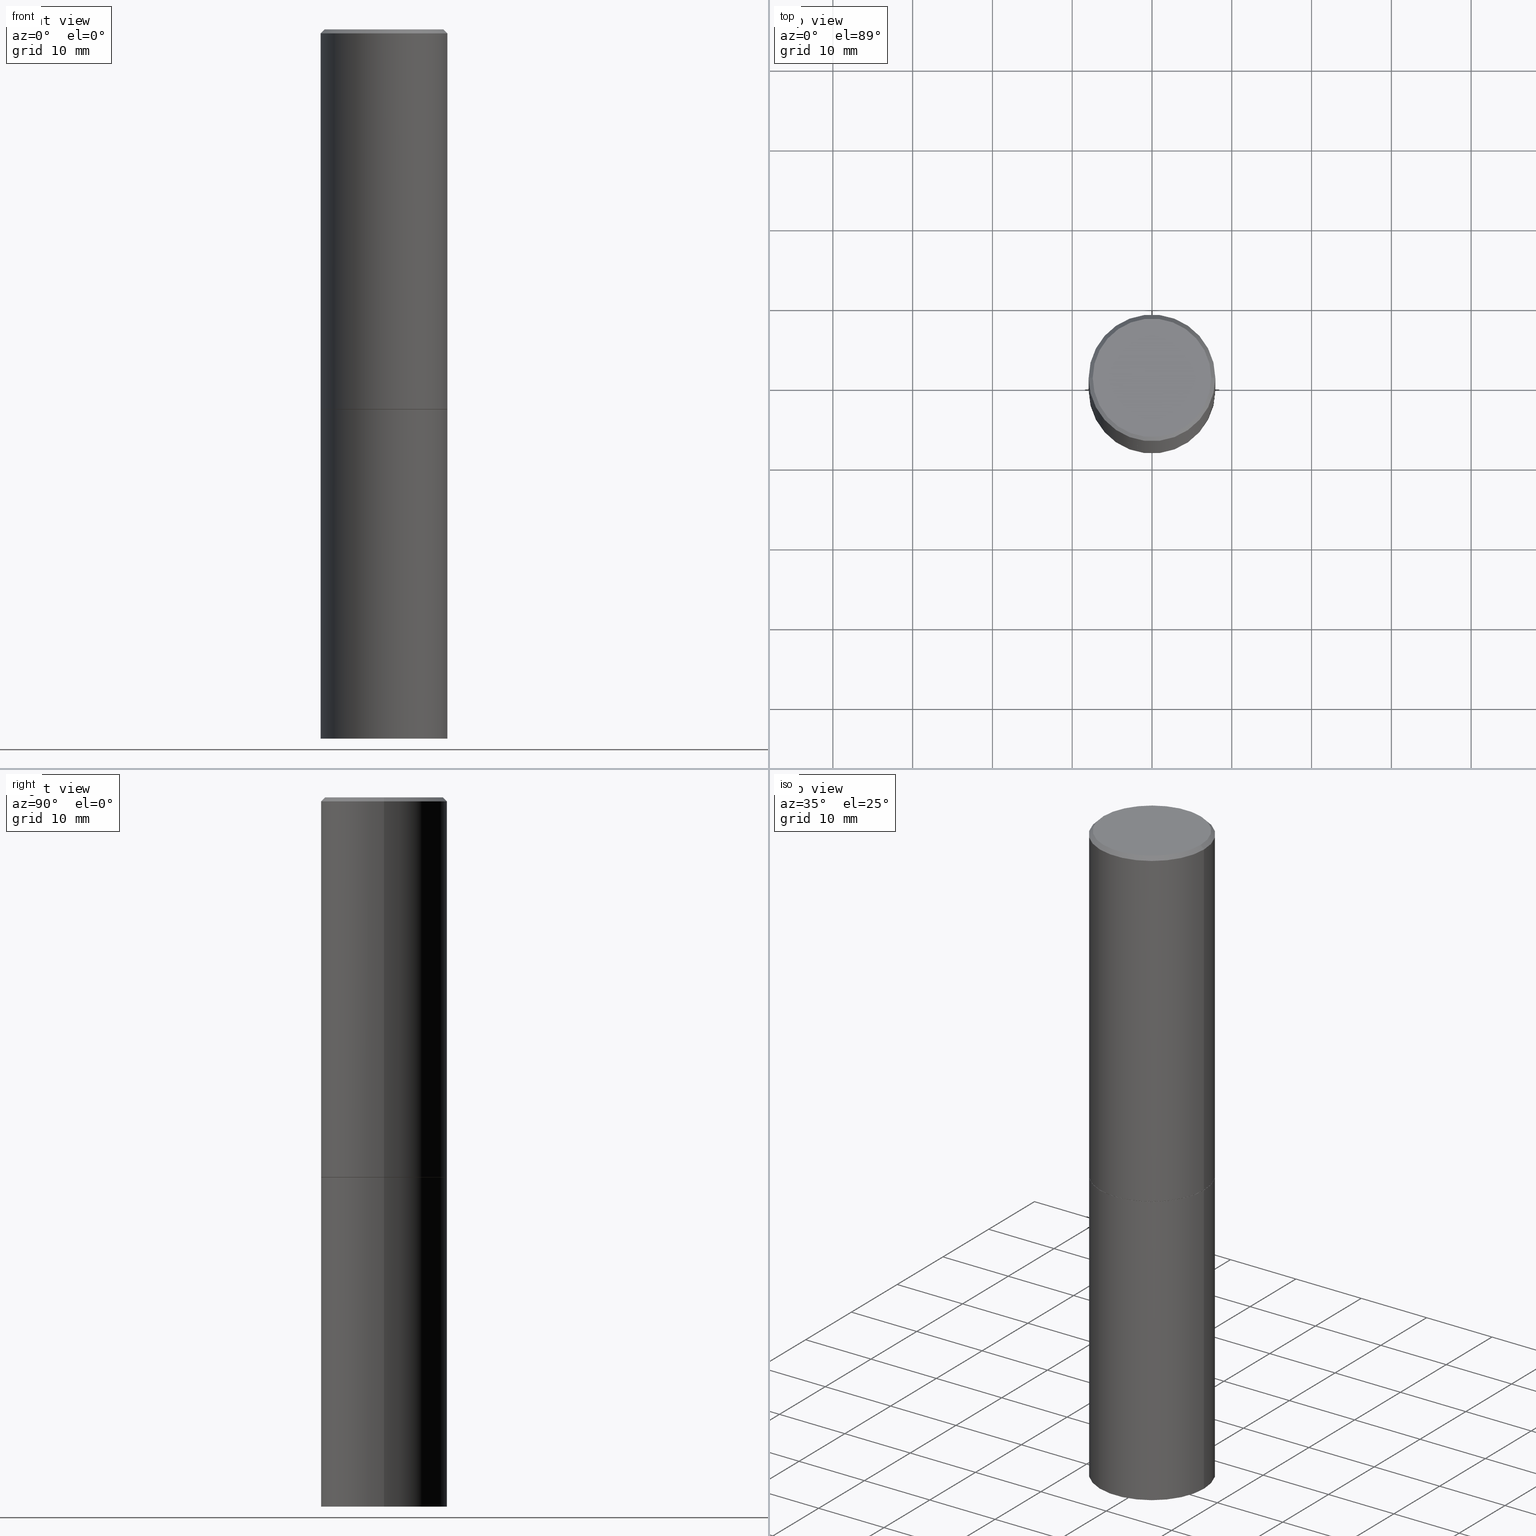
[diagram: canonical four-view strip — front | top / right | iso, engineering-drawing reading convention]
A machine part, canonical four-view strip (front | top / right | iso — engineering-drawing reading convention). The complete STEP part file that produces these views, byte-faithful:
ISO-10303-21;
HEADER;
FILE_DESCRIPTION (( 'STEP AP203' ),
    '1' );
FILE_NAME ('36624.STEP',
    '2024-02-27T19:48:56',
    ( '' ),
    ( '' ),
    'SwSTEP 2.0',
    'SolidWorks 2023',
    '' );
FILE_SCHEMA (( 'CONFIG_CONTROL_DESIGN' ));
ENDSEC;

DATA;
#1 = CARTESIAN_POINT ( 'NONE',  ( 4.585254011597130558E-29, -6.546527510330897918E-15, -1.874999999999999778 ) ) ;
#2 = ORIENTED_EDGE ( 'NONE', *, *, #314, .F. ) ;
#3 = ORIENTED_EDGE ( 'NONE', *, *, #189, .F. ) ;
#4 = VECTOR ( 'NONE', #78, 39.37007874015748143 ) ;
#5 = AXIS2_PLACEMENT_3D ( 'NONE', #1, #67, #122 ) ;
#6 = CARTESIAN_POINT ( 'NONE',  ( -0.3114999999999999991, -4.327888434089962654E-15, -1.874999999999999556 ) ) ;
#7 = APPROVAL_PERSON_ORGANIZATION ( #133, #79, #308 ) ;
#8 = VERTEX_POINT ( 'NONE', #106 ) ;
#9 = EDGE_CURVE ( 'NONE', #39, #41, #352, .T. ) ;
#10 = CARTESIAN_POINT ( 'NONE',  ( 0.3114999999999999991, -8.721720384430167884E-15, -1.874999999999999556 ) ) ;
#11 = VERTEX_POINT ( 'NONE', #193 ) ;
#12 = DIRECTION ( 'NONE',  ( -2.445468806185136597E-29, 3.491481338843145583E-15, 1.000000000000000000 ) ) ;
#13 = AXIS2_PLACEMENT_3D ( 'NONE', #16, #221, #270 ) ;
#14 = APPLICATION_CONTEXT ( 'configuration controlled 3d designs of mechanical parts and assemblies' ) ;
#15 = FACE_OUTER_BOUND ( 'NONE', #288, .T. ) ;
#16 = CARTESIAN_POINT ( 'NONE',  ( 2.042516583223230567E-15, 0.2924999999999997047, -1.019124035366569015E-15 ) ) ;
#17 = CYLINDRICAL_SURFACE ( 'NONE', #356, 0.3125000000000000000 ) ;
#18 = DIRECTION ( 'NONE',  ( 1.000000000000000000, -6.982962677686265922E-15, 4.876176775795935793E-29 ) ) ;
#19 = AXIS2_PLACEMENT_3D ( 'NONE', #310, #166, #135 ) ;
#20 = CIRCLE ( 'NONE', #330, 0.3114999999999999991 ) ;
#21 = DIRECTION ( 'NONE',  ( -2.438088387897960049E-29, 3.491481338843145188E-15, 1.000000000000000000 ) ) ;
#22 = APPROVAL_STATUS ( 'not_yet_approved' ) ;
#23 = FACE_OUTER_BOUND ( 'NONE', #112, .T. ) ;
#24 = PERSON_AND_ORGANIZATION_ROLE ( 'classification_officer' ) ;
#25 = APPROVAL_PERSON_ORGANIZATION ( #252, #304, #165 ) ;
#26 = CC_DESIGN_APPROVAL ( #79, ( #116 ) ) ;
#27 = CALENDAR_DATE ( 2024, 27, 2 ) ;
#28 = DATE_AND_TIME ( #27, #286 ) ;
#29 = PERSON_AND_ORGANIZATION ( #342, #237 ) ;
#30 = AXIS2_PLACEMENT_3D ( 'NONE', #53, #362, #139 ) ;
#31 = DIRECTION ( 'NONE',  ( 1.000000000000000000, -6.982962677686269077E-15, 0.000000000000000000 ) ) ;
#32 = ORIENTED_EDGE ( 'NONE', *, *, #9, .F. ) ;
#33 = LINE ( 'NONE', #210, #337 ) ;
#34 = ORIENTED_EDGE ( 'NONE', *, *, #177, .F. ) ;
#35 = EDGE_CURVE ( 'NONE', #341, #295, #312, .T. ) ;
#36 = CIRCLE ( 'NONE', #291, 0.2924999999999997047 ) ;
#37 = AXIS2_PLACEMENT_3D ( 'NONE', #58, #145, #321 ) ;
#38 = DIRECTION ( 'NONE',  ( 1.000000000000000000, -6.982962677686266711E-15, 4.876176775795935232E-29 ) ) ;
#39 = VERTEX_POINT ( 'NONE', #275 ) ;
#40 = DIRECTION ( 'NONE',  ( 1.000000000000000000, -6.982962677686266711E-15, 0.000000000000000000 ) ) ;
#41 = VERTEX_POINT ( 'NONE', #132 ) ;
#42 = CARTESIAN_POINT ( 'NONE',  ( 4.585254011597129998E-29, -6.546527510330896340E-15, -1.874999999999999556 ) ) ;
#43 = DIRECTION ( 'NONE',  ( 2.445468806185136597E-29, -3.491481338843145583E-15, -1.000000000000000000 ) ) ;
#44 = ADVANCED_FACE ( 'NONE', ( #242 ), #17, .T. ) ;
#45 = DIRECTION ( 'NONE',  ( -1.000000000000000000, 6.982962677686266711E-15, 0.000000000000000000 ) ) ;
#46 = CARTESIAN_POINT ( 'NONE',  ( -0.3114999999999999991, -4.333186888438184268E-15, -1.874999999999999556 ) ) ;
#47 = EDGE_LOOP ( 'NONE', ( #34, #318 ) ) ;
#48 = LINE ( 'NONE', #95, #50 ) ;
#49 = ORIENTED_EDGE ( 'NONE', *, *, #151, .T. ) ;
#50 = VECTOR ( 'NONE', #271, 39.37007874015748143 ) ;
#51 = COORDINATED_UNIVERSAL_TIME_OFFSET ( 5, 0, .BEHIND. ) ;
#52 = CALENDAR_DATE ( 2024, 27, 2 ) ;
#53 = CARTESIAN_POINT ( 'NONE',  ( 0.000000000000000000, 0.000000000000000000, 0.000000000000000000 ) ) ;
#54 = EDGE_CURVE ( 'NONE', #8, #322, #147, .T. ) ;
#55 = CIRCLE ( 'NONE', #5, 0.3125000000000000000 ) ;
#56 = DATE_AND_TIME ( #364, #59 ) ;
#57 = SECURITY_CLASSIFICATION_LEVEL ( 'unclassified' ) ;
#58 = CARTESIAN_POINT ( 'NONE',  ( 4.582808542790944955E-29, -6.543036028992054122E-15, -1.873999999999999666 ) ) ;
#59 = LOCAL_TIME ( 14, 48, 56.00000000000000000, #315 ) ;
#60 = CC_DESIGN_PERSON_AND_ORGANIZATION_ASSIGNMENT ( #250, #365, ( #366 ) ) ;
#61 = FACE_OUTER_BOUND ( 'NONE', #64, .T. ) ;
#62 = ORIENTED_EDGE ( 'NONE', *, *, #54, .F. ) ;
#63 = PLANE ( 'NONE',  #215 ) ;
#64 = EDGE_LOOP ( 'NONE', ( #150, #153, #262, #62 ) ) ;
#65 = LINE ( 'NONE', #289, #269 ) ;
#66 = EDGE_LOOP ( 'NONE', ( #114, #92, #121, #68 ) ) ;
#67 = DIRECTION ( 'NONE',  ( -2.445468806185136597E-29, 3.491481338843145583E-15, 1.000000000000000000 ) ) ;
#68 = ORIENTED_EDGE ( 'NONE', *, *, #302, .F. ) ;
#69 = CARTESIAN_POINT ( 'NONE',  ( 0.3125000000000000000, -8.725211865769012469E-15, -1.873999999999999666 ) ) ;
#70 = ORIENTED_EDGE ( 'NONE', *, *, #251, .F. ) ;
#71 = EDGE_CURVE ( 'NONE', #295, #341, #36, .T. ) ;
#72 = DIRECTION ( 'NONE',  ( 1.000000000000000000, -6.982962677686266711E-15, 4.876176775795936353E-29 ) ) ;
#73 = CC_DESIGN_APPROVAL ( #304, ( #366 ) ) ;
#74 = APPROVAL ( #22, 'UNSPECIFIED' ) ;
#75 = DIRECTION ( 'NONE',  ( 1.000000000000000000, -6.982962677686266711E-15, 4.876176775795936353E-29 ) ) ;
#76 = FACE_OUTER_BOUND ( 'NONE', #323, .T. ) ;
#77 = FACE_OUTER_BOUND ( 'NONE', #230, .T. ) ;
#78 = DIRECTION ( 'NONE',  ( -2.445468806185136877E-29, 3.491481338843145188E-15, 1.000000000000000000 ) ) ;
#79 = APPROVAL ( #84, 'UNSPECIFIED' ) ;
#80 = APPROVAL_STATUS ( 'not_yet_approved' ) ;
#81 = CONICAL_SURFACE ( 'NONE', #19, 0.3114999999999999991, 0.7853981633975507526 ) ;
#82 = VECTOR ( 'NONE', #161, 39.37007874015748143 ) ;
#83 = SHAPE_DEFINITION_REPRESENTATION ( #204, #96 ) ;
#84 = APPROVAL_STATUS ( 'not_yet_approved' ) ;
#85 = APPLICATION_PROTOCOL_DEFINITION ( 'international standard', 'config_control_design', 1994, #14 ) ;
#86 = COORDINATED_UNIVERSAL_TIME_OFFSET ( 5, 0, .BEHIND. ) ;
#87 = DIRECTION ( 'NONE',  ( -2.445468806185136597E-29, 3.491481338843145583E-15, 1.000000000000000000 ) ) ;
#88 = ORIENTED_EDGE ( 'NONE', *, *, #334, .T. ) ;
#89 = VECTOR ( 'NONE', #152, 39.37007874015748143 ) ;
#90 = CARTESIAN_POINT ( 'NONE',  ( 0.3124999999999997224, -2.213735251080464939E-15, -0.02000000000000007674 ) ) ;
#91 = ORIENTED_EDGE ( 'NONE', *, *, #35, .T. ) ;
#92 = ORIENTED_EDGE ( 'NONE', *, *, #212, .T. ) ;
#93 = DIRECTION ( 'NONE',  ( 1.000000000000000000, -6.982962677686265133E-15, 0.000000000000000000 ) ) ;
#94 = EDGE_LOOP ( 'NONE', ( #298, #180 ) ) ;
#95 = CARTESIAN_POINT ( 'NONE',  ( 0.3124999999999998890, -2.182175836776957558E-15, 1.523805242436229235E-29 ) ) ;
#96 = ADVANCED_BREP_SHAPE_REPRESENTATION ( '36624', ( #194, #197, #30 ), #196 ) ;
#97 = ORIENTED_EDGE ( 'NONE', *, *, #71, .F. ) ;
#98 = FACE_OUTER_BOUND ( 'NONE', #239, .T. ) ;
#99 = DIRECTION ( 'NONE',  ( 1.000000000000000000, -6.982962677686266711E-15, 4.876067333457694521E-29 ) ) ;
#100 = PRODUCT_RELATED_PRODUCT_CATEGORY ( 'detail', '', ( #109 ) ) ;
#101 = DIRECTION ( 'NONE',  ( -0.7071067811866199593, 7.493145998870616062E-15, 0.7071067811864750752 ) ) ;
#102 = CLOSED_SHELL ( 'NONE', ( #329, #336, #256, #44 ) ) ;
#103 = CARTESIAN_POINT ( 'NONE',  ( 0.3125000000000000000, -2.182175836776958347E-15, 1.523805242436230075E-29 ) ) ;
#104 = AXIS2_PLACEMENT_3D ( 'NONE', #348, #228, #31 ) ;
#105 = ADVANCED_FACE ( 'NONE', ( #23 ), #81, .T. ) ;
#106 = CARTESIAN_POINT ( 'NONE',  ( -0.3124999999999997224, 2.112346210000093471E-15, -0.02000000000000007674 ) ) ;
#107 = DATE_AND_TIME ( #248, #263 ) ;
#108 = AXIS2_PLACEMENT_3D ( 'NONE', #125, #185, #72 ) ;
#109 = PRODUCT ( '36624', '36624', '', ( #168 ) ) ;
#110 = APPROVAL_DATE_TIME ( #224, #74 ) ;
#111 = CONICAL_SURFACE ( 'NONE', #183, 0.3114999999999999991, 0.7853981633975507526 ) ;
#112 = EDGE_LOOP ( 'NONE', ( #211, #88, #293, #2 ) ) ;
#113 = CARTESIAN_POINT ( 'NONE',  ( 4.585254011597129998E-29, -6.546527510330896340E-15, -1.874999999999999556 ) ) ;
#114 = ORIENTED_EDGE ( 'NONE', *, *, #171, .T. ) ;
#115 = CC_DESIGN_SECURITY_CLASSIFICATION ( #116, ( #360 ) ) ;
#116 = SECURITY_CLASSIFICATION ( '', '', #57 ) ;
#117 = EDGE_CURVE ( 'NONE', #295, #8, #33, .T. ) ;
#118 = DIRECTION ( 'NONE',  ( -2.445468806185136597E-29, 3.491481338843145583E-15, 1.000000000000000000 ) ) ;
#119 = ORIENTED_EDGE ( 'NONE', *, *, #9, .T. ) ;
#120 = DIRECTION ( 'NONE',  ( 1.000000000000000000, -6.982962677686266711E-15, 4.876176775795935232E-29 ) ) ;
#121 = ORIENTED_EDGE ( 'NONE', *, *, #151, .F. ) ;
#122 = DIRECTION ( 'NONE',  ( 1.000000000000000000, -6.982962677686265133E-15, 0.000000000000000000 ) ) ;
#123 = ORIENTED_EDGE ( 'NONE', *, *, #251, .T. ) ;
#124 = CIRCLE ( 'NONE', #187, 0.3125000000000000000 ) ;
#125 = CARTESIAN_POINT ( 'NONE',  ( 0.000000000000000000, 0.000000000000000000, 0.000000000000000000 ) ) ;
#126 = ORIENTED_EDGE ( 'NONE', *, *, #334, .F. ) ;
#127 = DIRECTION ( 'NONE',  ( -2.445468806185136597E-29, 3.491481338843145583E-15, 1.000000000000000000 ) ) ;
#128 = CARTESIAN_POINT ( 'NONE',  ( 4.890937612370292426E-31, -6.982962677686317493E-17, -0.02000000000000007674 ) ) ;
#129 = CARTESIAN_POINT ( 'NONE',  ( 4.585254011597129998E-29, -6.546527510330896340E-15, -1.874999999999999556 ) ) ;
#130 = AXIS2_PLACEMENT_3D ( 'NONE', #285, #255, #38 ) ;
#131 = LINE ( 'NONE', #103, #82 ) ;
#132 = CARTESIAN_POINT ( 'NONE',  ( -0.3125000000000000000, -7.162910048890640155E-15, -1.874999999999999778 ) ) ;
#133 = PERSON_AND_ORGANIZATION ( #342, #237 ) ;
#134 = DIMENSIONAL_EXPONENTS ( 1.000000000000000000, 0.000000000000000000, 0.000000000000000000, 0.000000000000000000, 0.000000000000000000, 0.000000000000000000, 0.000000000000000000 ) ;
#135 = DIRECTION ( 'NONE',  ( 1.000000000000000000, -6.982962677686265922E-15, 0.000000000000000000 ) ) ;
#136 = VECTOR ( 'NONE', #299, 39.37007874015748143 ) ;
#137 = PERSON_AND_ORGANIZATION_ROLE ( 'design_owner' ) ;
#138 = ADVANCED_FACE ( 'NONE', ( #235 ), #205, .T. ) ;
#139 = DIRECTION ( 'NONE',  ( 1.000000000000000000, 0.000000000000000000, 0.000000000000000000 ) ) ;
#140 = COORDINATED_UNIVERSAL_TIME_OFFSET ( 5, 0, .BEHIND. ) ;
#141 = AXIS2_PLACEMENT_3D ( 'NONE', #273, #217, #156 ) ;
#142 = DIRECTION ( 'NONE',  ( -0.7071067811865465735, 2.468850131082246805E-15, -0.7071067811865484609 ) ) ;
#143 = ORIENTED_EDGE ( 'NONE', *, *, #240, .F. ) ;
#144 = PLANE ( 'NONE',  #220 ) ;
#145 = DIRECTION ( 'NONE',  ( -2.445468806185136597E-29, 3.491481338843145583E-15, 1.000000000000000000 ) ) ;
#146 = ORIENTED_EDGE ( 'NONE', *, *, #283, .F. ) ;
#147 = CIRCLE ( 'NONE', #202, 0.3124999999999997224 ) ;
#148 = AXIS2_PLACEMENT_3D ( 'NONE', #233, #316, #40 ) ;
#149 = CARTESIAN_POINT ( 'NONE',  ( 2.182175836777004101E-15, 0.3124999999999934497, -1.875000000000000888 ) ) ;
#150 = ORIENTED_EDGE ( 'NONE', *, *, #212, .F. ) ;
#151 = EDGE_CURVE ( 'NONE', #322, #8, #317, .T. ) ;
#152 = DIRECTION ( 'NONE',  ( 0.7071067811865465735, -7.319954787623252890E-15, -0.7071067811865484609 ) ) ;
#153 = ORIENTED_EDGE ( 'NONE', *, *, #283, .T. ) ;
#154 = CONICAL_SURFACE ( 'NONE', #333, 0.3124999999999997224, 0.7853981633974469467 ) ;
#155 = CONICAL_SURFACE ( 'NONE', #361, 0.3124999999999997224, 0.7853981633974469467 ) ;
#156 = DIRECTION ( 'NONE',  ( -1.000000000000000000, 6.982962677686265922E-15, -4.876176775795935793E-29 ) ) ;
#157 = DIRECTION ( 'NONE',  ( -2.445468806185136597E-29, 3.491481338843145583E-15, 1.000000000000000000 ) ) ;
#158 = DIRECTION ( 'NONE',  ( 1.000000000000000000, -6.982962677686265922E-15, 0.000000000000000000 ) ) ;
#159 = CARTESIAN_POINT ( 'NONE',  ( -1.043851414335219820E-46, 1.490343170380447200E-32, 4.268512490100411279E-18 ) ) ;
#160 = CARTESIAN_POINT ( 'NONE',  ( 4.890937612370292426E-31, -6.982962677686317493E-17, -0.02000000000000007674 ) ) ;
#161 = DIRECTION ( 'NONE',  ( -2.445468806185136877E-29, 3.491481338843145188E-15, 1.000000000000000000 ) ) ;
#162 = CIRCLE ( 'NONE', #206, 0.3125000000000000000 ) ;
#163 = VERTEX_POINT ( 'NONE', #10 ) ;
#164 = CARTESIAN_POINT ( 'NONE',  ( -1.043851414335219820E-46, 1.490343170380447200E-32, 4.268512490100411279E-18 ) ) ;
#165 = APPROVAL_ROLE ( '' ) ;
#166 = DIRECTION ( 'NONE',  ( -2.445468806185136597E-29, 3.491481338843145583E-15, 1.000000000000000000 ) ) ;
#167 = CC_DESIGN_PERSON_AND_ORGANIZATION_ASSIGNMENT ( #284, #24, ( #116 ) ) ;
#168 = MECHANICAL_CONTEXT ( 'NONE', #276, 'mechanical' ) ;
#169 = CLOSED_SHELL ( 'NONE', ( #105, #138, #279, #296, #227, #272, #260, #309 ) ) ;
#170 = CIRCLE ( 'NONE', #104, 0.3125000000000000000 ) ;
#171 = EDGE_CURVE ( 'NONE', #325, #347, #261, .T. ) ;
#172 = COORDINATED_UNIVERSAL_TIME_OFFSET ( 5, 0, .BEHIND. ) ;
#173 = CC_DESIGN_PERSON_AND_ORGANIZATION_ASSIGNMENT ( #339, #307, ( #360 ) ) ;
#174 =( NAMED_UNIT ( * ) SI_UNIT ( $, .STERADIAN. ) SOLID_ANGLE_UNIT ( ) );
#175 = DIRECTION ( 'NONE',  ( -2.445468806185136877E-29, 3.491481338843145188E-15, 1.000000000000000000 ) ) ;
#176 = DIRECTION ( 'NONE',  ( 1.000000000000000000, -6.982962677686269077E-15, 0.000000000000000000 ) ) ;
#177 = EDGE_CURVE ( 'NONE', #163, #184, #20, .T. ) ;
#178 = EDGE_LOOP ( 'NONE', ( #143, #97, #290, #320 ) ) ;
#179 = CARTESIAN_POINT ( 'NONE',  ( 4.585254011597129998E-29, -6.546527510330896340E-15, -1.874999999999999556 ) ) ;
#180 = ORIENTED_EDGE ( 'NONE', *, *, #200, .T. ) ;
#181 = CYLINDRICAL_SURFACE ( 'NONE', #130, 0.3124999999999998890 ) ;
#182 = ORIENTED_EDGE ( 'NONE', *, *, #35, .F. ) ;
#183 = AXIS2_PLACEMENT_3D ( 'NONE', #129, #243, #158 ) ;
#184 = VERTEX_POINT ( 'NONE', #6 ) ;
#185 = DIRECTION ( 'NONE',  ( -2.445468806185136597E-29, 3.491481338843145583E-15, 1.000000000000000000 ) ) ;
#186 =( NAMED_UNIT ( * ) PLANE_ANGLE_UNIT ( ) SI_UNIT ( $, .RADIAN. ) );
#187 = AXIS2_PLACEMENT_3D ( 'NONE', #274, #127, #245 ) ;
#188 = FACE_OUTER_BOUND ( 'NONE', #266, .T. ) ;
#189 = EDGE_CURVE ( 'NONE', #11, #39, #170, .T. ) ;
#190 = DESIGN_CONTEXT ( 'detailed design', #14, 'design' ) ;
#191 = DIRECTION ( 'NONE',  ( 2.445468806185136597E-29, -3.491481338843145583E-15, -1.000000000000000000 ) ) ;
#192 = PLANE ( 'NONE',  #141 ) ;
#193 = CARTESIAN_POINT ( 'NONE',  ( 0.3125000000000000000, -1.440236052272796769E-14, -3.500000000000000000 ) ) ;
#194 = MANIFOLD_SOLID_BREP ( 'Body-Move/Copy2[1]', #102 ) ;
#195 = DATE_AND_TIME ( #223, #219 ) ;
#196 =( GEOMETRIC_REPRESENTATION_CONTEXT ( 3 ) GLOBAL_UNCERTAINTY_ASSIGNED_CONTEXT ( ( #363 ) ) GLOBAL_UNIT_ASSIGNED_CONTEXT ( ( #327, #186, #174 ) ) REPRESENTATION_CONTEXT ( 'NONE', 'WORKASPACE' ) );
#197 = MANIFOLD_SOLID_BREP ( 'Body-Move/Copy2[2]', #169 ) ;
#198 = APPROVAL_ROLE ( '' ) ;
#199 = APPROVAL_DATE_TIME ( #56, #304 ) ;
#200 = EDGE_CURVE ( 'NONE', #41, #209, #343, .T. ) ;
#201 = DATE_TIME_ROLE ( 'creation_date' ) ;
#202 = AXIS2_PLACEMENT_3D ( 'NONE', #128, #244, #355 ) ;
#203 = DIRECTION ( 'NONE',  ( -2.445468806185136597E-29, 3.491481338843145583E-15, 1.000000000000000000 ) ) ;
#204 = PRODUCT_DEFINITION_SHAPE ( 'NONE', 'NONE',  #366 ) ;
#205 = CYLINDRICAL_SURFACE ( 'NONE', #249, 0.3124999999999998890 ) ;
#206 = AXIS2_PLACEMENT_3D ( 'NONE', #340, #87, #176 ) ;
#207 = ORIENTED_EDGE ( 'NONE', *, *, #314, .T. ) ;
#208 = DIRECTION ( 'NONE',  ( -2.445468806185136597E-29, 3.491481338843145583E-15, 1.000000000000000000 ) ) ;
#209 = VERTEX_POINT ( 'NONE', #346 ) ;
#210 = CARTESIAN_POINT ( 'NONE',  ( -0.3124999999999997224, 2.112346210000093471E-15, -0.02000000000000007674 ) ) ;
#211 = ORIENTED_EDGE ( 'NONE', *, *, #177, .T. ) ;
#212 = EDGE_CURVE ( 'NONE', #347, #8, #65, .T. ) ;
#213 = LINE ( 'NONE', #90, #89 ) ;
#214 = ORIENTED_EDGE ( 'NONE', *, *, #246, .F. ) ;
#215 = AXIS2_PLACEMENT_3D ( 'NONE', #179, #21, #18 ) ;
#216 = LINE ( 'NONE', #324, #136 ) ;
#217 = DIRECTION ( 'NONE',  ( 2.438088387897960049E-29, -3.491481338843145188E-15, -1.000000000000000000 ) ) ;
#218 = CARTESIAN_POINT ( 'NONE',  ( 0.000000000000000000, 0.000000000000000000, 0.000000000000000000 ) ) ;
#219 = LOCAL_TIME ( 14, 48, 56.00000000000000000, #140 ) ;
#220 = AXIS2_PLACEMENT_3D ( 'NONE', #149, #258, #344 ) ;
#221 = DIRECTION ( 'NONE',  ( 2.438088387897960049E-29, -3.491481338843145188E-15, -1.000000000000000000 ) ) ;
#222 = CC_DESIGN_PERSON_AND_ORGANIZATION_ASSIGNMENT ( #226, #278, ( #360 ) ) ;
#223 = CALENDAR_DATE ( 2024, 27, 2 ) ;
#224 = DATE_AND_TIME ( #52, #292 ) ;
#225 = DATE_TIME_ROLE ( 'classification_date' ) ;
#226 = PERSON_AND_ORGANIZATION ( #342, #237 ) ;
#227 = ADVANCED_FACE ( 'NONE', ( #61 ), #181, .T. ) ;
#228 = DIRECTION ( 'NONE',  ( -2.445468806185136597E-29, 3.491481338843145583E-15, 1.000000000000000000 ) ) ;
#229 = ORIENTED_EDGE ( 'NONE', *, *, #117, .F. ) ;
#230 = EDGE_LOOP ( 'NONE', ( #182, #232, #49, #229 ) ) ;
#231 = CARTESIAN_POINT ( 'NONE',  ( 4.585254011597130558E-29, -6.546527510330897918E-15, -1.874999999999999778 ) ) ;
#232 = ORIENTED_EDGE ( 'NONE', *, *, #240, .T. ) ;
#233 = CARTESIAN_POINT ( 'NONE',  ( 4.890937612370292426E-31, -6.982962677686317493E-17, -0.02000000000000007674 ) ) ;
#234 = CC_DESIGN_DATE_AND_TIME_ASSIGNMENT ( #195, #225, ( #116 ) ) ;
#235 = FACE_OUTER_BOUND ( 'NONE', #66, .T. ) ;
#236 = EDGE_LOOP ( 'NONE', ( #32, #123, #265, #259 ) ) ;
#237 = ORGANIZATION ( 'UNSPECIFIED', 'UNSPECIFIED', '' ) ;
#238 = CYLINDRICAL_SURFACE ( 'NONE', #108, 0.3125000000000000000 ) ;
#239 = EDGE_LOOP ( 'NONE', ( #345, #91 ) ) ;
#240 = EDGE_CURVE ( 'NONE', #341, #322, #213, .T. ) ;
#241 = LENGTH_MEASURE_WITH_UNIT ( LENGTH_MEASURE( 0.02539999999999999897 ), #305 );
#242 = FACE_OUTER_BOUND ( 'NONE', #236, .T. ) ;
#243 = DIRECTION ( 'NONE',  ( -2.445468806185136597E-29, 3.491481338843145583E-15, 1.000000000000000000 ) ) ;
#244 = DIRECTION ( 'NONE',  ( -2.445468806185136597E-29, 3.491481338843145583E-15, 1.000000000000000000 ) ) ;
#245 = DIRECTION ( 'NONE',  ( 1.000000000000000000, -6.982962677686265133E-15, 0.000000000000000000 ) ) ;
#246 = EDGE_CURVE ( 'NONE', #209, #41, #55, .T. ) ;
#247 = CARTESIAN_POINT ( 'NONE',  ( -0.2924999999999997047, 2.077431396611662216E-15, 4.268512490086005323E-18 ) ) ;
#248 = CALENDAR_DATE ( 2024, 27, 2 ) ;
#249 = AXIS2_PLACEMENT_3D ( 'NONE', #294, #118, #120 ) ;
#250 = PERSON_AND_ORGANIZATION ( #342, #237 ) ;
#251 = EDGE_CURVE ( 'NONE', #39, #11, #162, .T. ) ;
#252 = PERSON_AND_ORGANIZATION ( #342, #237 ) ;
#253 = AXIS2_PLACEMENT_3D ( 'NONE', #159, #157, #99 ) ;
#254 = VECTOR ( 'NONE', #101, 39.37007874015748143 ) ;
#255 = DIRECTION ( 'NONE',  ( -2.445468806185136597E-29, 3.491481338843145583E-15, 1.000000000000000000 ) ) ;
#256 = ADVANCED_FACE ( 'NONE', ( #287 ), #144, .F. ) ;
#257 = ORIENTED_EDGE ( 'NONE', *, *, #189, .T. ) ;
#258 = DIRECTION ( 'NONE',  ( 2.438088387897960049E-29, -3.491481338843145188E-15, -1.000000000000000000 ) ) ;
#259 = ORIENTED_EDGE ( 'NONE', *, *, #200, .F. ) ;
#260 = ADVANCED_FACE ( 'NONE', ( #319 ), #63, .F. ) ;
#261 = CIRCLE ( 'NONE', #37, 0.3125000000000000000 ) ;
#262 = ORIENTED_EDGE ( 'NONE', *, *, #302, .T. ) ;
#263 = LOCAL_TIME ( 14, 48, 56.00000000000000000, #51 ) ;
#264 = DIRECTION ( 'NONE',  ( 1.000000000000000000, -6.982962677686265922E-15, 0.000000000000000000 ) ) ;
#265 = ORIENTED_EDGE ( 'NONE', *, *, #268, .T. ) ;
#266 = EDGE_LOOP ( 'NONE', ( #126, #349, #207, #146 ) ) ;
#267 = CARTESIAN_POINT ( 'NONE',  ( 4.890937612370292426E-31, -6.982962677686317493E-17, -0.02000000000000007674 ) ) ;
#268 = EDGE_CURVE ( 'NONE', #11, #209, #131, .T. ) ;
#269 = VECTOR ( 'NONE', #175, 39.37007874015748143 ) ;
#270 = DIRECTION ( 'NONE',  ( -1.000000000000000000, 6.982962677686265922E-15, -4.876176775795935793E-29 ) ) ;
#271 = DIRECTION ( 'NONE',  ( -2.445468806185136877E-29, 3.491481338843145188E-15, 1.000000000000000000 ) ) ;
#272 = ADVANCED_FACE ( 'NONE', ( #188 ), #111, .T. ) ;
#273 = CARTESIAN_POINT ( 'NONE',  ( 2.182175836777043938E-15, 0.3124999999999877875, -3.500000000000000888 ) ) ;
#274 = CARTESIAN_POINT ( 'NONE',  ( 4.582808542790944955E-29, -6.543036028992054122E-15, -1.873999999999999666 ) ) ;
#275 = CARTESIAN_POINT ( 'NONE',  ( -0.3125000000000000000, -7.162910048890640155E-15, -3.500000000000000000 ) ) ;
#276 = APPLICATION_CONTEXT ( 'configuration controlled 3d designs of mechanical parts and assemblies' ) ;
#277 = DIRECTION ( 'NONE',  ( 1.000000000000000000, -6.982962677686266711E-15, 4.876067333457694521E-29 ) ) ;
#278 = PERSON_AND_ORGANIZATION_ROLE ( 'creator' ) ;
#279 = ADVANCED_FACE ( 'NONE', ( #77 ), #155, .T. ) ;
#280 = APPROVAL_PERSON_ORGANIZATION ( #29, #74, #198 ) ;
#281 = DIRECTION ( 'NONE',  ( -2.445468806185136597E-29, 3.491481338843145583E-15, 1.000000000000000000 ) ) ;
#282 = CC_DESIGN_PERSON_AND_ORGANIZATION_ASSIGNMENT ( #359, #137, ( #109 ) ) ;
#283 = EDGE_CURVE ( 'NONE', #347, #325, #124, .T. ) ;
#284 = PERSON_AND_ORGANIZATION ( #342, #237 ) ;
#285 = CARTESIAN_POINT ( 'NONE',  ( 0.000000000000000000, 0.000000000000000000, 0.000000000000000000 ) ) ;
#286 = LOCAL_TIME ( 14, 48, 56.00000000000000000, #86 ) ;
#287 = FACE_OUTER_BOUND ( 'NONE', #94, .T. ) ;
#288 = EDGE_LOOP ( 'NONE', ( #257, #119, #214, #350 ) ) ;
#289 = CARTESIAN_POINT ( 'NONE',  ( -0.3124999999999998890, 2.220446049250312292E-15, -1.537167215704657391E-29 ) ) ;
#290 = ORIENTED_EDGE ( 'NONE', *, *, #117, .T. ) ;
#291 = AXIS2_PLACEMENT_3D ( 'NONE', #164, #281, #277 ) ;
#292 = LOCAL_TIME ( 14, 48, 56.00000000000000000, #172 ) ;
#293 = ORIENTED_EDGE ( 'NONE', *, *, #171, .F. ) ;
#294 = CARTESIAN_POINT ( 'NONE',  ( 0.000000000000000000, 0.000000000000000000, 0.000000000000000000 ) ) ;
#295 = VERTEX_POINT ( 'NONE', #247 ) ;
#296 = ADVANCED_FACE ( 'NONE', ( #301 ), #154, .T. ) ;
#297 = CARTESIAN_POINT ( 'NONE',  ( 0.2924999999999997047, -2.110215457714317959E-15, 4.268512490114932791E-18 ) ) ;
#298 = ORIENTED_EDGE ( 'NONE', *, *, #246, .T. ) ;
#299 = DIRECTION ( 'NONE',  ( 0.7071067811866199593, -2.468850131083015945E-15, 0.7071067811864750752 ) ) ;
#300 = CC_DESIGN_DATE_AND_TIME_ASSIGNMENT ( #28, #201, ( #366 ) ) ;
#301 = FACE_OUTER_BOUND ( 'NONE', #178, .T. ) ;
#302 = EDGE_CURVE ( 'NONE', #325, #322, #48, .T. ) ;
#303 = DIRECTION ( 'NONE',  ( 1.000000000000000000, -6.982962677686265922E-15, 0.000000000000000000 ) ) ;
#304 = APPROVAL ( #80, 'UNSPECIFIED' ) ;
#305 =( LENGTH_UNIT ( ) NAMED_UNIT ( * ) SI_UNIT ( $, .METRE. ) );
#306 = AXIS2_PLACEMENT_3D ( 'NONE', #231, #208, #93 ) ;
#307 = PERSON_AND_ORGANIZATION_ROLE ( 'design_supplier' ) ;
#308 = APPROVAL_ROLE ( '' ) ;
#309 = ADVANCED_FACE ( 'NONE', ( #98 ), #354, .F. ) ;
#310 = CARTESIAN_POINT ( 'NONE',  ( 4.585254011597129998E-29, -6.546527510330896340E-15, -1.874999999999999556 ) ) ;
#311 = APPLICATION_PROTOCOL_DEFINITION ( 'international standard', 'config_control_design', 1994, #276 ) ;
#312 = CIRCLE ( 'NONE', #253, 0.2924999999999997047 ) ;
#313 = CIRCLE ( 'NONE', #357, 0.3114999999999999991 ) ;
#314 = EDGE_CURVE ( 'NONE', #163, #325, #216, .T. ) ;
#315 = COORDINATED_UNIVERSAL_TIME_OFFSET ( 5, 0, .BEHIND. ) ;
#316 = DIRECTION ( 'NONE',  ( -2.445468806185136597E-29, 3.491481338843145583E-15, 1.000000000000000000 ) ) ;
#317 = CIRCLE ( 'NONE', #148, 0.3124999999999997224 ) ;
#318 = ORIENTED_EDGE ( 'NONE', *, *, #326, .F. ) ;
#319 = FACE_OUTER_BOUND ( 'NONE', #47, .T. ) ;
#320 = ORIENTED_EDGE ( 'NONE', *, *, #54, .T. ) ;
#321 = DIRECTION ( 'NONE',  ( 1.000000000000000000, -6.982962677686265133E-15, 0.000000000000000000 ) ) ;
#322 = VERTEX_POINT ( 'NONE', #331 ) ;
#323 = EDGE_LOOP ( 'NONE', ( #3, #70 ) ) ;
#324 = CARTESIAN_POINT ( 'NONE',  ( 0.3114999999999999991, -8.721720384430167884E-15, -1.874999999999999556 ) ) ;
#325 = VERTEX_POINT ( 'NONE', #69 ) ;
#326 = EDGE_CURVE ( 'NONE', #184, #163, #313, .T. ) ;
#327 =( CONVERSION_BASED_UNIT ( 'INCH', #241 ) LENGTH_UNIT ( ) NAMED_UNIT ( #134 ) );
#328 = CARTESIAN_POINT ( 'NONE',  ( -0.3125000000000000000, 2.220446049250313081E-15, -1.537167215704658232E-29 ) ) ;
#329 = ADVANCED_FACE ( 'NONE', ( #15 ), #238, .T. ) ;
#330 = AXIS2_PLACEMENT_3D ( 'NONE', #113, #203, #264 ) ;
#331 = CARTESIAN_POINT ( 'NONE',  ( 0.3124999999999997224, -2.213735251080464939E-15, -0.02000000000000007674 ) ) ;
#332 = CARTESIAN_POINT ( 'NONE',  ( -0.3125000000000000000, -1.085986778634144643E-15, -1.873999999999999666 ) ) ;
#333 = AXIS2_PLACEMENT_3D ( 'NONE', #267, #191, #45 ) ;
#334 = EDGE_CURVE ( 'NONE', #184, #347, #351, .T. ) ;
#335 = APPROVAL_DATE_TIME ( #107, #79 ) ;
#336 = ADVANCED_FACE ( 'NONE', ( #76 ), #192, .T. ) ;
#337 = VECTOR ( 'NONE', #142, 39.37007874015748143 ) ;
#338 = CC_DESIGN_APPROVAL ( #74, ( #360 ) ) ;
#339 = PERSON_AND_ORGANIZATION ( #342, #237 ) ;
#340 = CARTESIAN_POINT ( 'NONE',  ( 8.559140821647976968E-29, -1.222018468595100934E-14, -3.500000000000000000 ) ) ;
#341 = VERTEX_POINT ( 'NONE', #297 ) ;
#342 = PERSON ( 'UNSPECIFIED', 'UNSPECIFIED', 'UNSPECIFIED', ('UNSPECIFIED'), ('UNSPECIFIED'), ('UNSPECIFIED') ) ;
#343 = CIRCLE ( 'NONE', #306, 0.3125000000000000000 ) ;
#344 = DIRECTION ( 'NONE',  ( -1.000000000000000000, 6.982962677686265922E-15, -4.876176775795935793E-29 ) ) ;
#345 = ORIENTED_EDGE ( 'NONE', *, *, #71, .T. ) ;
#346 = CARTESIAN_POINT ( 'NONE',  ( 0.3125000000000000000, -8.728703347107855476E-15, -1.874999999999999778 ) ) ;
#347 = VERTEX_POINT ( 'NONE', #332 ) ;
#348 = CARTESIAN_POINT ( 'NONE',  ( 8.559140821647976968E-29, -1.222018468595100934E-14, -3.500000000000000000 ) ) ;
#349 = ORIENTED_EDGE ( 'NONE', *, *, #326, .T. ) ;
#350 = ORIENTED_EDGE ( 'NONE', *, *, #268, .F. ) ;
#351 = LINE ( 'NONE', #46, #254 ) ;
#352 = LINE ( 'NONE', #328, #4 ) ;
#353 = DIRECTION ( 'NONE',  ( -2.445468806185136597E-29, 3.491481338843145583E-15, 1.000000000000000000 ) ) ;
#354 = PLANE ( 'NONE',  #13 ) ;
#355 = DIRECTION ( 'NONE',  ( 1.000000000000000000, -6.982962677686266711E-15, 0.000000000000000000 ) ) ;
#356 = AXIS2_PLACEMENT_3D ( 'NONE', #218, #353, #75 ) ;
#357 = AXIS2_PLACEMENT_3D ( 'NONE', #42, #12, #303 ) ;
#358 = DIRECTION ( 'NONE',  ( -1.000000000000000000, 6.982962677686266711E-15, 0.000000000000000000 ) ) ;
#359 = PERSON_AND_ORGANIZATION ( #342, #237 ) ;
#360 = PRODUCT_DEFINITION_FORMATION_WITH_SPECIFIED_SOURCE ( 'ANY', '', #109, .NOT_KNOWN. ) ;
#361 = AXIS2_PLACEMENT_3D ( 'NONE', #160, #43, #358 ) ;
#362 = DIRECTION ( 'NONE',  ( 0.000000000000000000, 0.000000000000000000, 1.000000000000000000 ) ) ;
#363 = UNCERTAINTY_MEASURE_WITH_UNIT (LENGTH_MEASURE( 1.000000000000000082E-05 ), #327, 'distance_accuracy_value', 'NONE');
#364 = CALENDAR_DATE ( 2024, 27, 2 ) ;
#365 = PERSON_AND_ORGANIZATION_ROLE ( 'creator' ) ;
#366 = PRODUCT_DEFINITION ( 'UNKNOWN', '', #360, #190 ) ;
ENDSEC;
END-ISO-10303-21;
